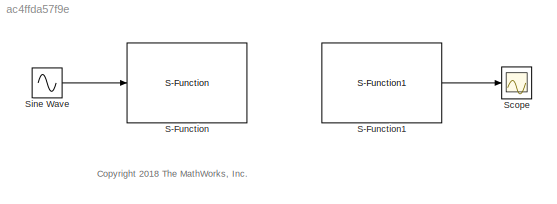
MODEL slx_ac4ffda57f9e
KIND model
CONFIG AbsTol = auto
CONFIG EnableMultiTasking = off
CONFIG FixedStep = auto
CONFIG MaxStep = auto
CONFIG MinStep = auto
CONFIG RelTol = 1e-3
CONFIG SampleTimeConstraint = Unconstrained
CONFIG Solver = VariableStepAuto
CONFIG SolverName = VariableStepAuto
CONFIG StartTime = 0.0
CONFIG StopTime = 30
BLOCK [Reference] S-Function  REF=transmit_lib/S-Function
  AttributesFormatString = %<hostname>\n%<portnumber>
  Ports = [1]
  Priority = 1
  SourceBlock = transmit_lib/S-Function
BLOCK [Reference] S-Function1  REF=transmit_lib/S-Function1
  AttributesFormatString = %<hostname>\n%<portnumber>
  Ports = [0, 1]
  Priority = 2
  SourceBlock = transmit_lib/S-Function1
BLOCK [Scope] Scope
  Floating = off
  NumInputPorts = 1
  Ports = [1]
  ScopeSpecificationString = Simulink.scopes.TimeScopeBlockCfg('CurrentConfiguration', extmgr.ConfigurationSet(extmgr.Configuration('Core','General UI',true),extmgr.Configuration('Core','Source UI',true),extmgr.Configuration('Sources','WiredSimulink',true),extmgr.Configuration('Visuals','Time Domain',true,'SerializedDisplays',{struct('MinYLimReal','-3.25752','MaxYLimReal','3.25752','YLabelReal','','MinYLimMag','0.00000','MaxY...<+1420ch>
BLOCK [Sin] Sine Wave
  Amplitude = rand(3,1)
  Ports = [0, 1]
  SampleTime = 0.1
  SineType = Sample based
ANNOTATION (root): <copyright redacted>
LINE S-Function1:1 -> Scope:1
LINE Sine Wave:1 -> S-Function:1
